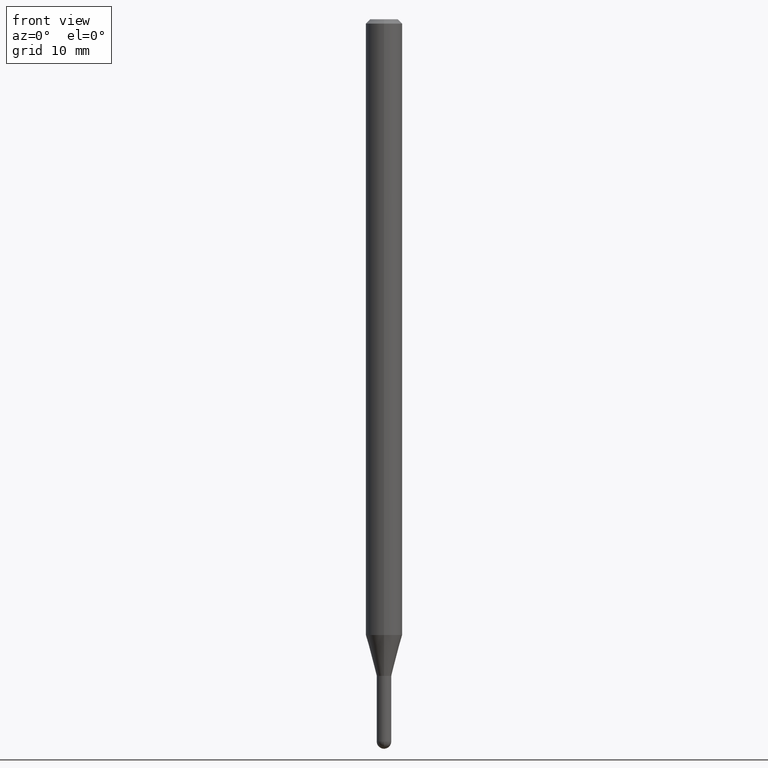
[diagram: clean part render]
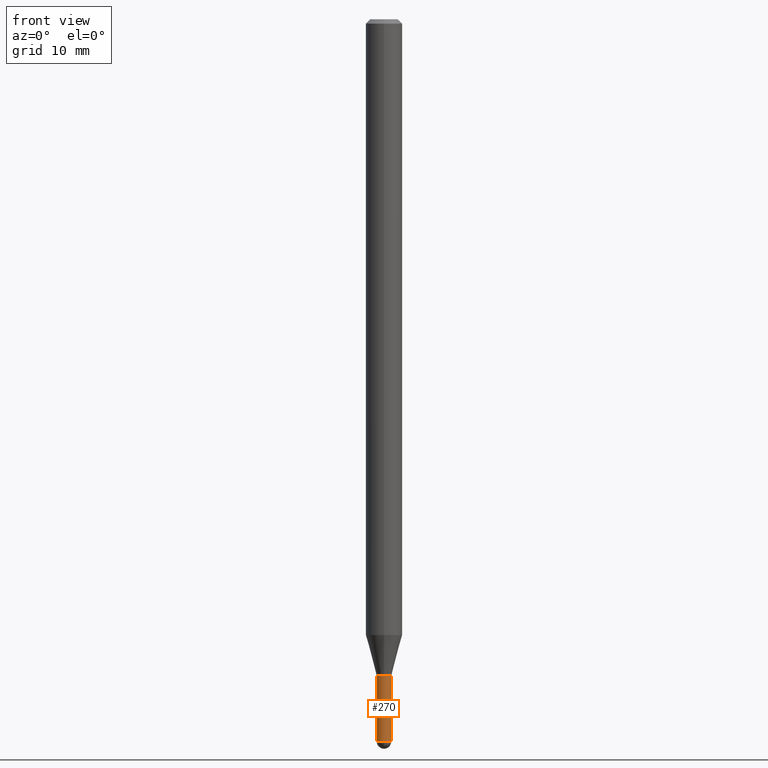
[diagram: same view with one face highlighted and labeled with its STEP entity id]
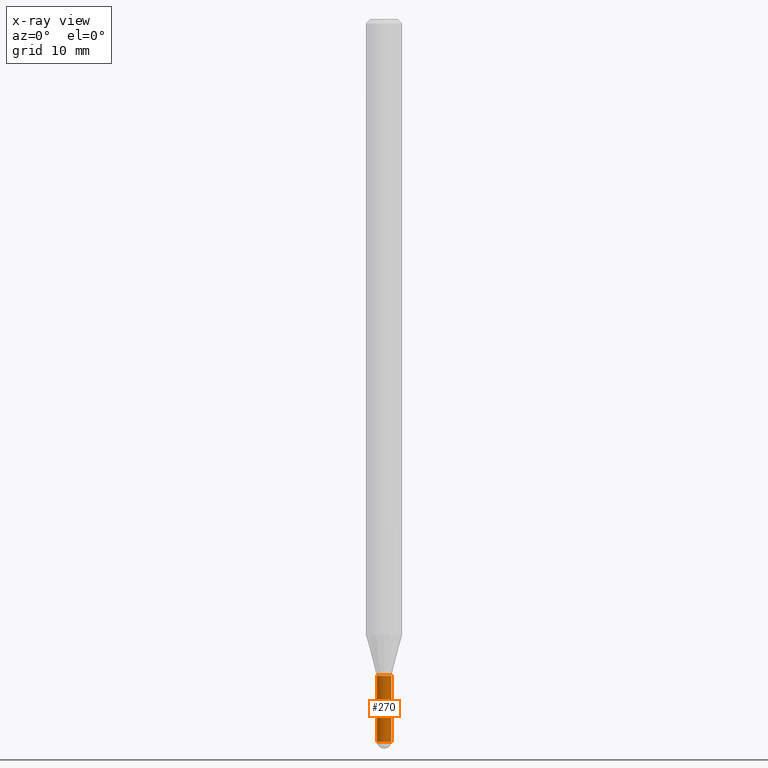
[diagram: x-ray of the same camera — body ghosted, the highlighted face saturated]
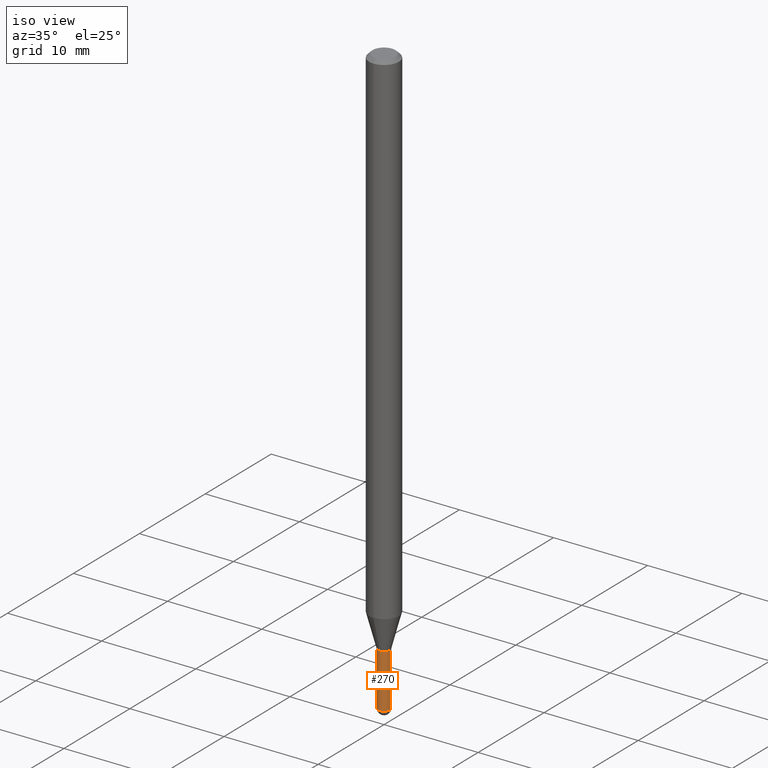
[diagram: same view with one face highlighted and labeled with its STEP entity id]
A machine part, front view. The second image highlights one B-rep face of the part: STEP entity #270.
The next image is the same camera in x-ray: the body ghosted, the highlighted face saturated — about 0% of this face is hidden behind the body in this view.
A second angle (iso view) of the same face is appended — the face is thin or edge-on in the first view.
In plain terms, the highlighted cylindrical surface (edge-blend (fillet) strip) has radius 0.635 mm, axis along (-0, 0, 1).
Its self-contained STEP definition (entity closure, byte-faithful):
#10 = EDGE_CURVE ( 'NONE', #466, #347, #117, .T. ) ;
#25 = LINE ( 'NONE', #98, #390 ) ;
#35 = DIRECTION ( 'NONE',  ( -2.445468806185136877E-29, 3.491481338843145188E-15, 1.000000000000000000 ) ) ;
#52 = AXIS2_PLACEMENT_3D ( 'NONE', #412, #57, #241 ) ;
#57 = DIRECTION ( 'NONE',  ( -2.445468806185136597E-29, 3.491481338843145583E-15, 1.000000000000000000 ) ) ;
#66 = CARTESIAN_POINT ( 'NONE',  ( 0.02500000000000000486, -1.745740669421567171E-16, 1.219044193948984299E-30 ) ) ;
#97 = ORIENTED_EDGE ( 'NONE', *, *, #141, .T. ) ;
#98 = CARTESIAN_POINT ( 'NONE',  ( -0.02500000000000000486, 1.776356839400250810E-16, -1.229733772563726656E-30 ) ) ;
#101 = CARTESIAN_POINT ( 'NONE',  ( 5.502304813916557343E-29, -7.855833012397078448E-15, -2.250000000000000000 ) ) ;
#117 = CIRCLE ( 'NONE', #228, 0.02500000000000000139 ) ;
#133 = CARTESIAN_POINT ( 'NONE',  ( 0.000000000000000000, 0.000000000000000000, 0.000000000000000000 ) ) ;
#136 = CYLINDRICAL_SURFACE ( 'NONE', #468, 0.02500000000000000486 ) ;
#141 = EDGE_CURVE ( 'NONE', #174, #308, #423, .T. ) ;
#149 = ORIENTED_EDGE ( 'NONE', *, *, #479, .T. ) ;
#154 = ORIENTED_EDGE ( 'NONE', *, *, #10, .F. ) ;
#156 = CARTESIAN_POINT ( 'NONE',  ( -1.776356839399643140E-16, -0.02500000000000861256, -2.475000000000000089 ) ) ;
#174 = VERTEX_POINT ( 'NONE', #156 ) ;
#177 = CARTESIAN_POINT ( 'NONE',  ( 0.02500000000000000486, -8.423198729959088407E-15, -2.475000000000000089 ) ) ;
#179 = DIRECTION ( 'NONE',  ( -2.445468806185136877E-29, 3.491481338843145188E-15, 1.000000000000000000 ) ) ;
#208 = DIRECTION ( 'NONE',  ( 1.000000000000000000, -6.982962677686267499E-15, 4.876176775795936353E-29 ) ) ;
#217 = CARTESIAN_POINT ( 'NONE',  ( -0.02500000000000000486, -8.070988979076907324E-15, -2.475000000000000089 ) ) ;
#228 = AXIS2_PLACEMENT_3D ( 'NONE', #101, #425, #258 ) ;
#235 = FACE_OUTER_BOUND ( 'NONE', #265, .T. ) ;
#241 = DIRECTION ( 'NONE',  ( 1.000000000000000000, -6.982962677686253300E-15, 0.000000000000000000 ) ) ;
#245 = ORIENTED_EDGE ( 'NONE', *, *, #362, .T. ) ;
#258 = DIRECTION ( 'NONE',  ( 1.000000000000000000, -6.982962677686254878E-15, 0.000000000000000000 ) ) ;
#265 = EDGE_LOOP ( 'NONE', ( #370, #245, #97, #149, #154 ) ) ;
#270 = ADVANCED_FACE ( 'NONE', ( #235 ), #136, .T. ) ;
#278 = CIRCLE ( 'NONE', #52, 0.02500000000000000486 ) ;
#279 = CARTESIAN_POINT ( 'NONE',  ( 6.052535295308213750E-29, -8.641416313636786609E-15, -2.475000000000000089 ) ) ;
#280 = DIRECTION ( 'NONE',  ( -2.445468806185136597E-29, 3.491481338843145583E-15, 1.000000000000000000 ) ) ;
#284 = AXIS2_PLACEMENT_3D ( 'NONE', #279, #394, #511 ) ;
#308 = VERTEX_POINT ( 'NONE', #177 ) ;
#347 = VERTEX_POINT ( 'NONE', #448 ) ;
#349 = VECTOR ( 'NONE', #35, 39.37007874015748143 ) ;
#362 = EDGE_CURVE ( 'NONE', #453, #174, #278, .T. ) ;
#370 = ORIENTED_EDGE ( 'NONE', *, *, #426, .F. ) ;
#378 = CARTESIAN_POINT ( 'NONE',  ( -0.02500000000000000139, -8.070988979076907324E-15, -2.250000000000000000 ) ) ;
#390 = VECTOR ( 'NONE', #179, 39.37007874015748143 ) ;
#394 = DIRECTION ( 'NONE',  ( -2.445468806185136597E-29, 3.491481338843145583E-15, 1.000000000000000000 ) ) ;
#412 = CARTESIAN_POINT ( 'NONE',  ( 6.052535295308213750E-29, -8.641416313636786609E-15, -2.475000000000000089 ) ) ;
#423 = CIRCLE ( 'NONE', #284, 0.02500000000000000486 ) ;
#425 = DIRECTION ( 'NONE',  ( -2.445468806185136597E-29, 3.491481338843145583E-15, 1.000000000000000000 ) ) ;
#426 = EDGE_CURVE ( 'NONE', #453, #466, #25, .T. ) ;
#448 = CARTESIAN_POINT ( 'NONE',  ( 0.02500000000000000139, -8.030407079339233538E-15, -2.250000000000000000 ) ) ;
#453 = VERTEX_POINT ( 'NONE', #217 ) ;
#466 = VERTEX_POINT ( 'NONE', #378 ) ;
#468 = AXIS2_PLACEMENT_3D ( 'NONE', #133, #280, #208 ) ;
#479 = EDGE_CURVE ( 'NONE', #308, #347, #500, .T. ) ;
#500 = LINE ( 'NONE', #66, #349 ) ;
#511 = DIRECTION ( 'NONE',  ( 1.000000000000000000, -6.982962677686253300E-15, 0.000000000000000000 ) ) ;